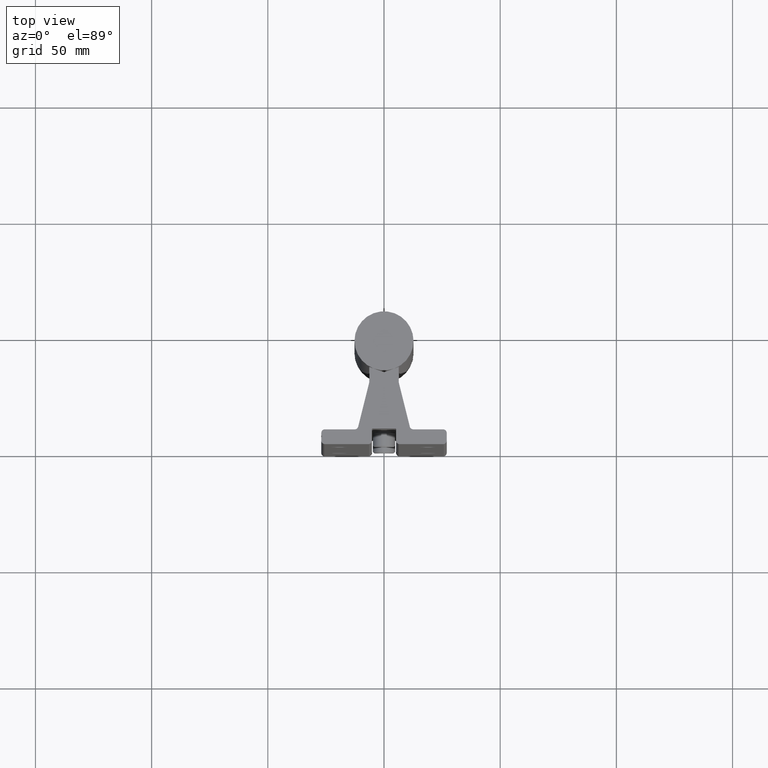
[diagram: clean part render]
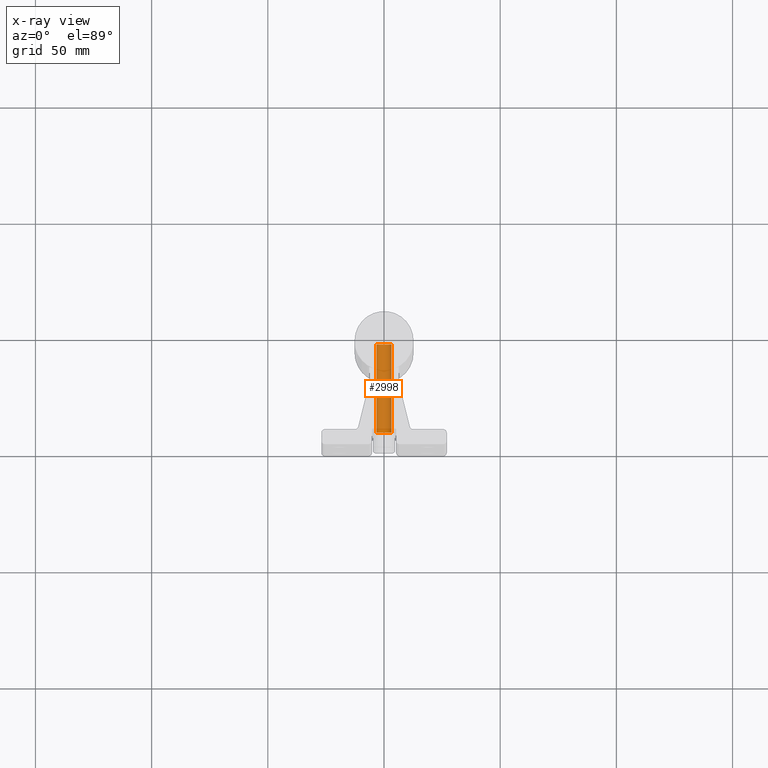
[diagram: x-ray — body ghosted, one internal face saturated and labeled with its STEP entity id]
A machine part, top view, then the same camera in x-ray: the body is ghosted and one INTERNAL B-rep face — a face not visible from any outside direction — is saturated and labeled: STEP entity #2998.
In plain terms, the highlighted cylindrical surface (edge-blend (fillet) strip) has radius 3.175 mm, axis along (0, 1, 0).
Its self-contained STEP definition (entity closure, byte-faithful):
#5 = EDGE_CURVE ( 'NONE', #50, #777, #3768, .T. ) ;
#50 = VERTEX_POINT ( 'NONE', #4851 ) ;
#96 = EDGE_LOOP ( 'NONE', ( #1770, #5427, #355, #5533 ) ) ;
#175 = DIRECTION ( 'NONE',  ( -0.000000000000000000, -1.000000000000000000, -0.000000000000000000 ) ) ;
#355 = ORIENTED_EDGE ( 'NONE', *, *, #5, .T. ) ;
#503 = DIRECTION ( 'NONE',  ( 0.000000000000000000, 1.000000000000000000, 0.000000000000000000 ) ) ;
#642 = CARTESIAN_POINT ( 'NONE',  ( 0.1250000000000000000, 1.740625000000000311, -3.000000000000000444 ) ) ;
#676 = DIRECTION ( 'NONE',  ( 1.000000000000000000, 0.000000000000000000, 0.000000000000000000 ) ) ;
#720 = VECTOR ( 'NONE', #729, 39.37007874015748143 ) ;
#729 = DIRECTION ( 'NONE',  ( 0.000000000000000000, 1.000000000000000000, 0.000000000000000000 ) ) ;
#777 = VERTEX_POINT ( 'NONE', #642 ) ;
#843 = DIRECTION ( 'NONE',  ( -0.000000000000000000, 1.000000000000000000, -0.000000000000000000 ) ) ;
#1079 = VERTEX_POINT ( 'NONE', #3719 ) ;
#1302 = CARTESIAN_POINT ( 'NONE',  ( 0.1250000000000000000, 0.2500000000000000555, -3.000000000000000444 ) ) ;
#1332 = CARTESIAN_POINT ( 'NONE',  ( 0.000000000000000000, 0.2500000000000000555, -3.000000000000000444 ) ) ;
#1424 = VECTOR ( 'NONE', #2708, 39.37007874015748143 ) ;
#1532 = CARTESIAN_POINT ( 'NONE',  ( 0.000000000000000000, 1.740625000000000311, -3.000000000000000444 ) ) ;
#1625 = AXIS2_PLACEMENT_3D ( 'NONE', #1532, #175, #676 ) ;
#1770 = ORIENTED_EDGE ( 'NONE', *, *, #5196, .T. ) ;
#1827 = AXIS2_PLACEMENT_3D ( 'NONE', #2819, #503, #1910 ) ;
#1910 = DIRECTION ( 'NONE',  ( 1.000000000000000000, 0.000000000000000000, 0.000000000000000000 ) ) ;
#2704 = DIRECTION ( 'NONE',  ( -1.000000000000000000, 0.000000000000000000, 0.000000000000000000 ) ) ;
#2708 = DIRECTION ( 'NONE',  ( 0.000000000000000000, 1.000000000000000000, 0.000000000000000000 ) ) ;
#2819 = CARTESIAN_POINT ( 'NONE',  ( 0.000000000000000000, 0.2500000000000000555, -3.000000000000000444 ) ) ;
#2900 = EDGE_CURVE ( 'NONE', #1079, #777, #5495, .T. ) ;
#2998 = ADVANCED_FACE ( 'NONE', ( #4850 ), #5172, .T. ) ;
#3719 = CARTESIAN_POINT ( 'NONE',  ( 0.1250000000000000000, 0.2500000000000000555, -3.000000000000000444 ) ) ;
#3768 = CIRCLE ( 'NONE', #1625, 0.1250000000000000000 ) ;
#3827 = AXIS2_PLACEMENT_3D ( 'NONE', #1332, #843, #2704 ) ;
#4379 = LINE ( 'NONE', #5731, #720 ) ;
#4850 = FACE_OUTER_BOUND ( 'NONE', #96, .T. ) ;
#4851 = CARTESIAN_POINT ( 'NONE',  ( -0.1250000000000000000, 1.740625000000000311, -3.000000000000000444 ) ) ;
#5172 = CYLINDRICAL_SURFACE ( 'NONE', #1827, 0.1250000000000000000 ) ;
#5196 = EDGE_CURVE ( 'NONE', #1079, #5396, #5312, .T. ) ;
#5312 = CIRCLE ( 'NONE', #3827, 0.1250000000000000000 ) ;
#5396 = VERTEX_POINT ( 'NONE', #5404 ) ;
#5404 = CARTESIAN_POINT ( 'NONE',  ( -0.1250000000000000000, 0.2500000000000000555, -3.000000000000000444 ) ) ;
#5427 = ORIENTED_EDGE ( 'NONE', *, *, #5859, .T. ) ;
#5495 = LINE ( 'NONE', #1302, #1424 ) ;
#5533 = ORIENTED_EDGE ( 'NONE', *, *, #2900, .F. ) ;
#5731 = CARTESIAN_POINT ( 'NONE',  ( -0.1250000000000000000, 0.2500000000000000555, -3.000000000000000444 ) ) ;
#5859 = EDGE_CURVE ( 'NONE', #5396, #50, #4379, .T. ) ;